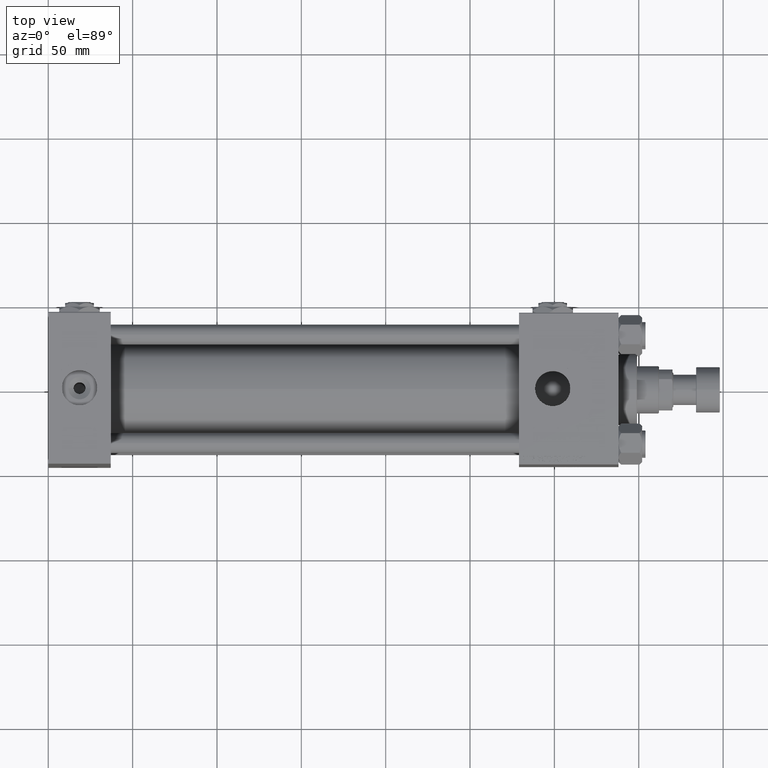
[diagram: clean part render]
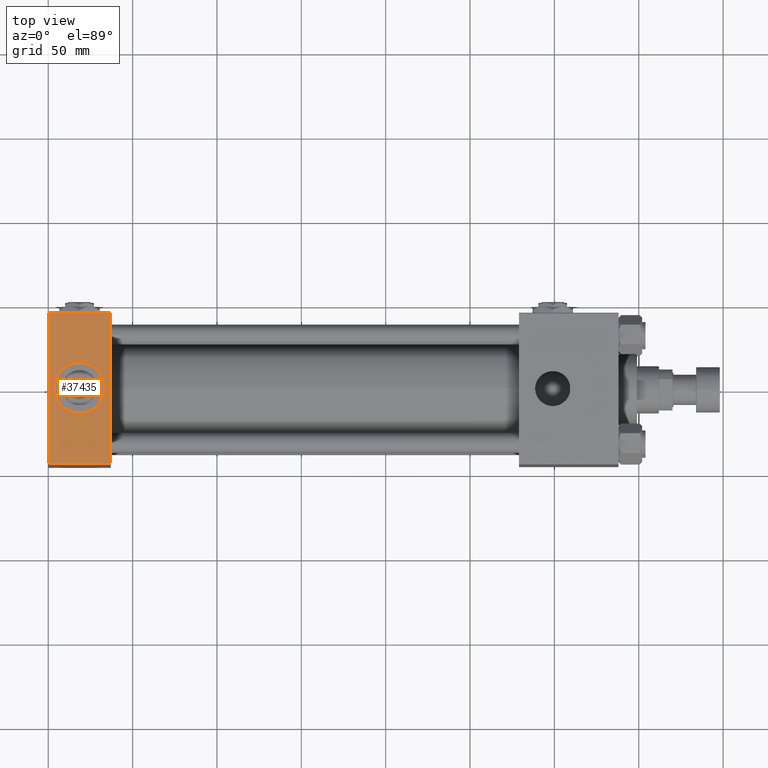
[diagram: same view with one face highlighted and labeled with its STEP entity id]
A machine part, top view. The second image highlights one B-rep face of the part: STEP entity #37435.
In plain terms, the highlighted planar face has unit normal (0, 0, -1).
Its self-contained STEP definition (entity closure, byte-faithful):
#728 = EDGE_CURVE ( 'NONE', #34107, #28090, #24278, .T. ) ;
#2818 = CARTESIAN_POINT ( 'NONE',  ( 3.499999999999997780, -1.084578588119829295E-14, 70.99999999999998579 ) ) ;
#3811 = VECTOR ( 'NONE', #27715, 1000.000000000000000 ) ;
#5298 = CARTESIAN_POINT ( 'NONE',  ( 37.00000000000000000, -44.50000000000002132, 70.99999999999998579 ) ) ;
#8081 = AXIS2_PLACEMENT_3D ( 'NONE', #36652, #8210, #36129 ) ;
#8210 = DIRECTION ( 'NONE',  ( 0.000000000000000000, 0.000000000000000000, 1.000000000000000000 ) ) ;
#8690 = VERTEX_POINT ( 'NONE', #44437 ) ;
#11460 = DIRECTION ( 'NONE',  ( 0.000000000000000000, 0.000000000000000000, 1.000000000000000000 ) ) ;
#12886 = AXIS2_PLACEMENT_3D ( 'NONE', #47843, #11460, #27651 ) ;
#13438 = CARTESIAN_POINT ( 'NONE',  ( 0.000000000000000000, -44.49999999999999289, 70.99999999999998579 ) ) ;
#14220 = ORIENTED_EDGE ( 'NONE', *, *, #18158, .F. ) ;
#15421 = CIRCLE ( 'NONE', #12886, 15.00000000000000355 ) ;
#16024 = CARTESIAN_POINT ( 'NONE',  ( 0.000000000000000000, 44.50000000000000711, 71.00000000000000000 ) ) ;
#16201 = VECTOR ( 'NONE', #21781, 1000.000000000000000 ) ;
#16879 = EDGE_CURVE ( 'NONE', #20067, #28090, #41982, .T. ) ;
#17041 = CARTESIAN_POINT ( 'NONE',  ( 0.000000000000000000, 44.50000000000000711, 71.00000000000000000 ) ) ;
#18158 = EDGE_CURVE ( 'NONE', #8690, #38202, #15421, .T. ) ;
#20067 = VERTEX_POINT ( 'NONE', #13438 ) ;
#21111 = CARTESIAN_POINT ( 'NONE',  ( 37.00000000000000000, 44.50000000000000711, 71.00000000000000000 ) ) ;
#21781 = DIRECTION ( 'NONE',  ( 1.000000000000000000, 0.000000000000000000, 0.000000000000000000 ) ) ;
#22365 = ORIENTED_EDGE ( 'NONE', *, *, #16879, .T. ) ;
#24278 = LINE ( 'NONE', #31998, #41785 ) ;
#27324 = EDGE_CURVE ( 'NONE', #45009, #20067, #37389, .T. ) ;
#27651 = DIRECTION ( 'NONE',  ( 1.000000000000000000, 0.000000000000000000, 0.000000000000000000 ) ) ;
#27715 = DIRECTION ( 'NONE',  ( -1.000000000000000000, 0.000000000000000000, 0.000000000000000000 ) ) ;
#28090 = VERTEX_POINT ( 'NONE', #43725 ) ;
#29415 = EDGE_CURVE ( 'NONE', #34107, #45009, #40199, .T. ) ;
#30154 = FACE_BOUND ( 'NONE', #38568, .T. ) ;
#30412 = DIRECTION ( 'NONE',  ( 0.000000000000000000, 1.541976423090495633E-16, -1.000000000000000000 ) ) ;
#30669 = PLANE ( 'NONE',  #42698 ) ;
#31998 = CARTESIAN_POINT ( 'NONE',  ( 37.00000000000000000, 45.00000000000000711, 71.00000000000000000 ) ) ;
#33303 = ORIENTED_EDGE ( 'NONE', *, *, #29415, .T. ) ;
#34107 = VERTEX_POINT ( 'NONE', #21111 ) ;
#36129 = DIRECTION ( 'NONE',  ( 1.000000000000000000, 0.000000000000000000, 0.000000000000000000 ) ) ;
#36557 = ORIENTED_EDGE ( 'NONE', *, *, #43493, .F. ) ;
#36652 = CARTESIAN_POINT ( 'NONE',  ( 18.50000000000000000, -1.268275607991932333E-14, 70.99999999999998579 ) ) ;
#37389 = LINE ( 'NONE', #48792, #41130 ) ;
#37435 = ADVANCED_FACE ( 'NONE', ( #30154, #46358 ), #30669, .F. ) ;
#38202 = VERTEX_POINT ( 'NONE', #2818 ) ;
#38568 = EDGE_LOOP ( 'NONE', ( #14220, #36557 ) ) ;
#40199 = LINE ( 'NONE', #16024, #3811 ) ;
#41130 = VECTOR ( 'NONE', #45617, 1000.000000000000000 ) ;
#41785 = VECTOR ( 'NONE', #44216, 1000.000000000000000 ) ;
#41982 = LINE ( 'NONE', #5298, #16201 ) ;
#42141 = EDGE_LOOP ( 'NONE', ( #44856, #22365, #48114, #33303 ) ) ;
#42376 = CARTESIAN_POINT ( 'NONE',  ( 37.00000000000000000, 45.00000000000000711, 71.00000000000000000 ) ) ;
#42698 = AXIS2_PLACEMENT_3D ( 'NONE', #42376, #30412, #50587 ) ;
#42918 = CIRCLE ( 'NONE', #8081, 15.00000000000000355 ) ;
#43493 = EDGE_CURVE ( 'NONE', #38202, #8690, #42918, .T. ) ;
#43725 = CARTESIAN_POINT ( 'NONE',  ( 37.00000000000000000, -44.49999999999999289, 70.99999999999998579 ) ) ;
#44216 = DIRECTION ( 'NONE',  ( 0.000000000000000000, -1.000000000000000000, -1.541976423090495387E-16 ) ) ;
#44437 = CARTESIAN_POINT ( 'NONE',  ( 33.50000000000000000, -1.268275607991932333E-14, 70.99999999999998579 ) ) ;
#44856 = ORIENTED_EDGE ( 'NONE', *, *, #27324, .T. ) ;
#45009 = VERTEX_POINT ( 'NONE', #17041 ) ;
#45617 = DIRECTION ( 'NONE',  ( 0.000000000000000000, -1.000000000000000000, -1.541976423090495387E-16 ) ) ;
#46358 = FACE_OUTER_BOUND ( 'NONE', #42141, .T. ) ;
#47843 = CARTESIAN_POINT ( 'NONE',  ( 18.50000000000000000, -1.268275607991932333E-14, 70.99999999999998579 ) ) ;
#48114 = ORIENTED_EDGE ( 'NONE', *, *, #728, .F. ) ;
#48792 = CARTESIAN_POINT ( 'NONE',  ( 0.000000000000000000, 45.00000000000000711, 71.00000000000000000 ) ) ;
#50587 = DIRECTION ( 'NONE',  ( 0.000000000000000000, 1.000000000000000000, 1.541976423090495633E-16 ) ) ;